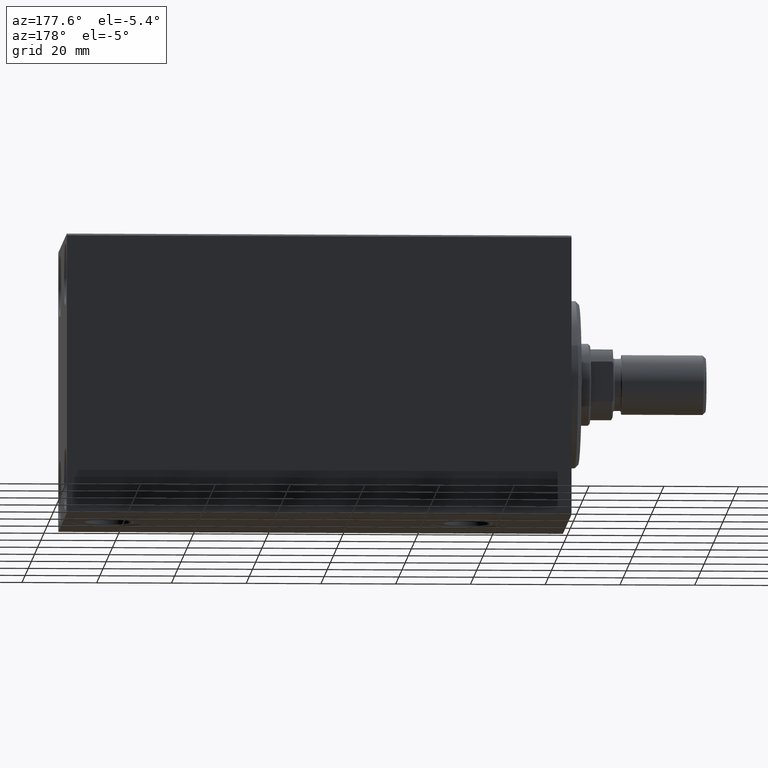
[diagram: clean part render]
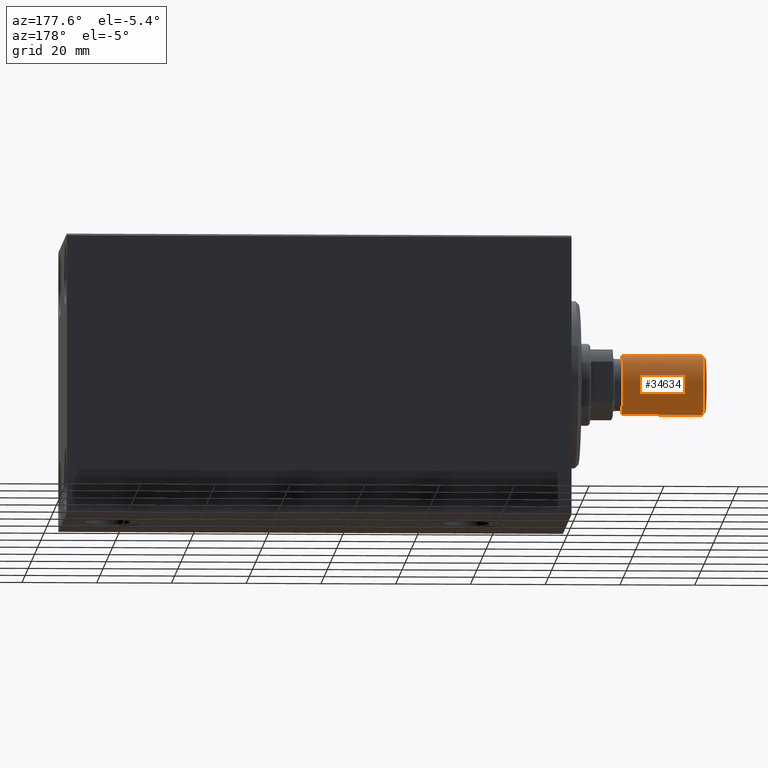
[diagram: same view with one face highlighted and labeled with its STEP entity id]
A machine part, auxiliary view. The second image highlights one B-rep face of the part: STEP entity #34634.
In plain terms, the highlighted cylindrical surface (edge-blend (fillet) strip) has radius 8 mm, axis along (-1, -0, 0).
Its self-contained STEP definition (entity closure, byte-faithful):
#455 = DIRECTION ( 'NONE',  ( -0.000000000000000000, -0.000000000000000000, -1.000000000000000000 ) ) ;
#1486 = EDGE_CURVE ( 'NONE', #23877, #21198, #29629, .T. ) ;
#7141 = CARTESIAN_POINT ( 'NONE',  ( 8.000000000000000000, 9.797174393178823685E-16, 0.8000000000000160316 ) ) ;
#7425 = DIRECTION ( 'NONE',  ( -1.000000000000000000, 0.000000000000000000, 0.000000000000000000 ) ) ;
#7624 = AXIS2_PLACEMENT_3D ( 'NONE', #26236, #39927, #39031 ) ;
#7924 = LINE ( 'NONE', #22289, #22567 ) ;
#8321 = CIRCLE ( 'NONE', #22699, 8.000000000000000000 ) ;
#10228 = DIRECTION ( 'NONE',  ( 1.000000000000000000, 0.000000000000000000, 0.000000000000000000 ) ) ;
#10271 = AXIS2_PLACEMENT_3D ( 'NONE', #31241, #455, #7425 ) ;
#11983 = VERTEX_POINT ( 'NONE', #43757 ) ;
#15129 = ORIENTED_EDGE ( 'NONE', *, *, #41710, .T. ) ;
#15248 = EDGE_LOOP ( 'NONE', ( #20446, #25206, #15129, #35974 ) ) ;
#16147 = CARTESIAN_POINT ( 'NONE',  ( 8.000000000000000000, 9.797174393178823685E-16, 22.50000000000000000 ) ) ;
#19824 = EDGE_CURVE ( 'NONE', #23877, #11983, #31293, .T. ) ;
#20446 = ORIENTED_EDGE ( 'NONE', *, *, #19824, .F. ) ;
#21198 = VERTEX_POINT ( 'NONE', #7141 ) ;
#22289 = CARTESIAN_POINT ( 'NONE',  ( -8.000000000000000000, 0.000000000000000000, 22.50000000000000000 ) ) ;
#22567 = VECTOR ( 'NONE', #25878, 1000.000000000000000 ) ;
#22699 = AXIS2_PLACEMENT_3D ( 'NONE', #27297, #40974, #10228 ) ;
#23877 = VERTEX_POINT ( 'NONE', #31045 ) ;
#25152 = VECTOR ( 'NONE', #40374, 1000.000000000000000 ) ;
#25206 = ORIENTED_EDGE ( 'NONE', *, *, #1486, .T. ) ;
#25878 = DIRECTION ( 'NONE',  ( -0.000000000000000000, -0.000000000000000000, -1.000000000000000000 ) ) ;
#26236 = CARTESIAN_POINT ( 'NONE',  ( 0.000000000000000000, 0.000000000000000000, 22.50000000000000000 ) ) ;
#27297 = CARTESIAN_POINT ( 'NONE',  ( 0.000000000000000000, 0.000000000000000000, 0.8000000000000160316 ) ) ;
#29629 = LINE ( 'NONE', #16147, #25152 ) ;
#29712 = FACE_OUTER_BOUND ( 'NONE', #15248, .T. ) ;
#31045 = CARTESIAN_POINT ( 'NONE',  ( 8.000000000000000000, 9.797174393178823685E-16, 22.50000000000000000 ) ) ;
#31241 = CARTESIAN_POINT ( 'NONE',  ( 0.000000000000000000, 0.000000000000000000, 22.50000000000000000 ) ) ;
#31293 = CIRCLE ( 'NONE', #7624, 8.000000000000000000 ) ;
#33328 = EDGE_CURVE ( 'NONE', #11983, #41689, #7924, .T. ) ;
#34634 = ADVANCED_FACE ( 'NONE', ( #29712 ), #38628, .T. ) ;
#35974 = ORIENTED_EDGE ( 'NONE', *, *, #33328, .F. ) ;
#38628 = CYLINDRICAL_SURFACE ( 'NONE', #10271, 8.000000000000000000 ) ;
#39031 = DIRECTION ( 'NONE',  ( 1.000000000000000000, 0.000000000000000000, 0.000000000000000000 ) ) ;
#39927 = DIRECTION ( 'NONE',  ( 0.000000000000000000, 0.000000000000000000, 1.000000000000000000 ) ) ;
#40374 = DIRECTION ( 'NONE',  ( -0.000000000000000000, -0.000000000000000000, -1.000000000000000000 ) ) ;
#40546 = CARTESIAN_POINT ( 'NONE',  ( -8.000000000000000000, 0.000000000000000000, 0.8000000000000160316 ) ) ;
#40974 = DIRECTION ( 'NONE',  ( -0.000000000000000000, -0.000000000000000000, 1.000000000000000000 ) ) ;
#41689 = VERTEX_POINT ( 'NONE', #40546 ) ;
#41710 = EDGE_CURVE ( 'NONE', #21198, #41689, #8321, .T. ) ;
#43757 = CARTESIAN_POINT ( 'NONE',  ( -8.000000000000000000, 0.000000000000000000, 22.50000000000000000 ) ) ;